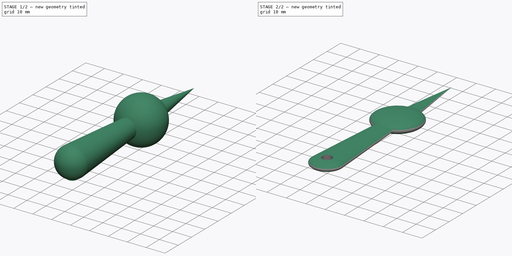
[diagram: build sequence overview — one tinted view per stage of 2, left to right]
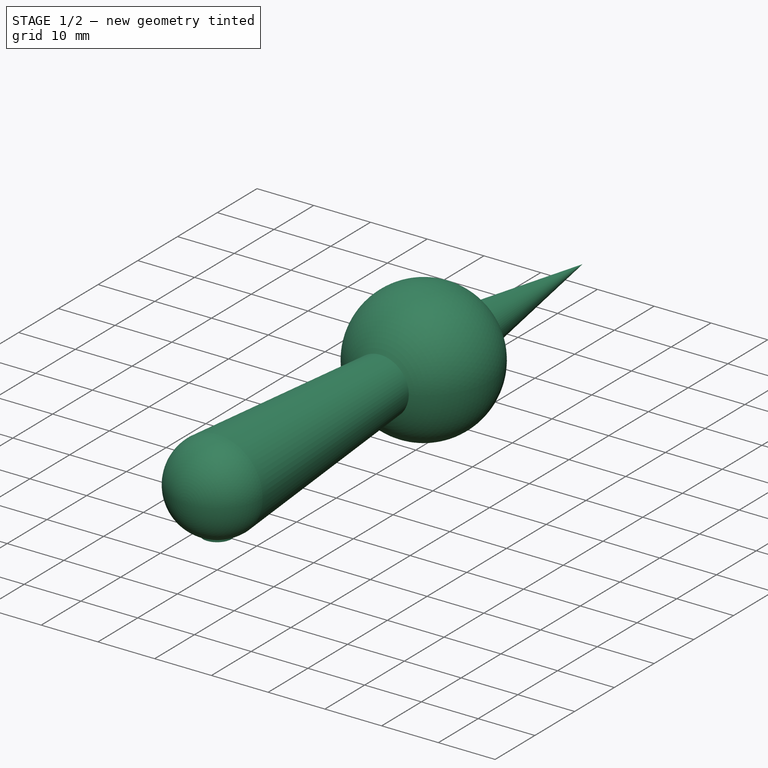
[diagram: stage 1 of 2 — iso view after this stage's code; geometry added in this stage tinted green]
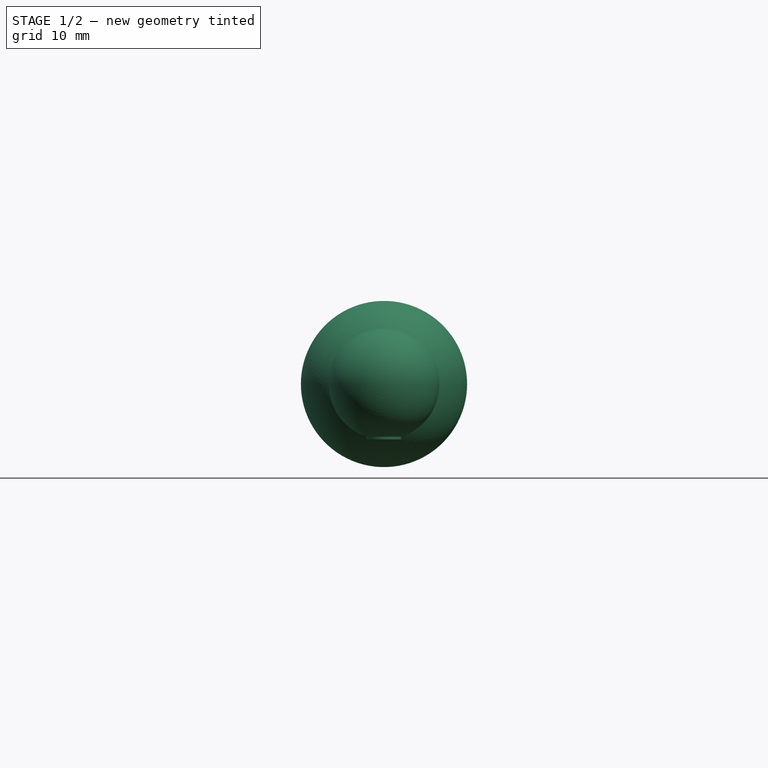
[diagram: stage 1 of 2 — front view after this stage's code; geometry added in this stage tinted green]
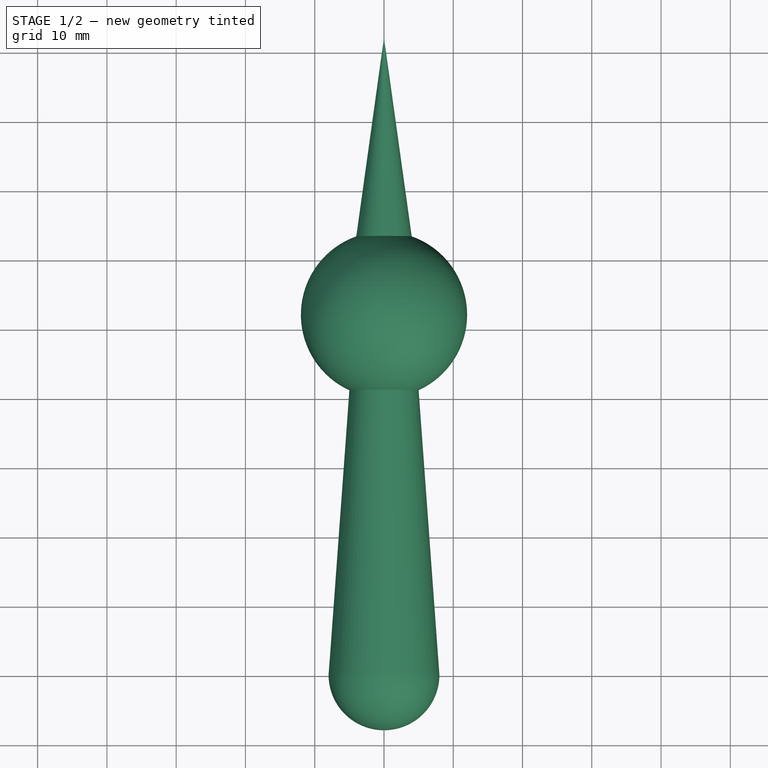
[diagram: stage 1 of 2 — top view after this stage's code; geometry added in this stage tinted green]
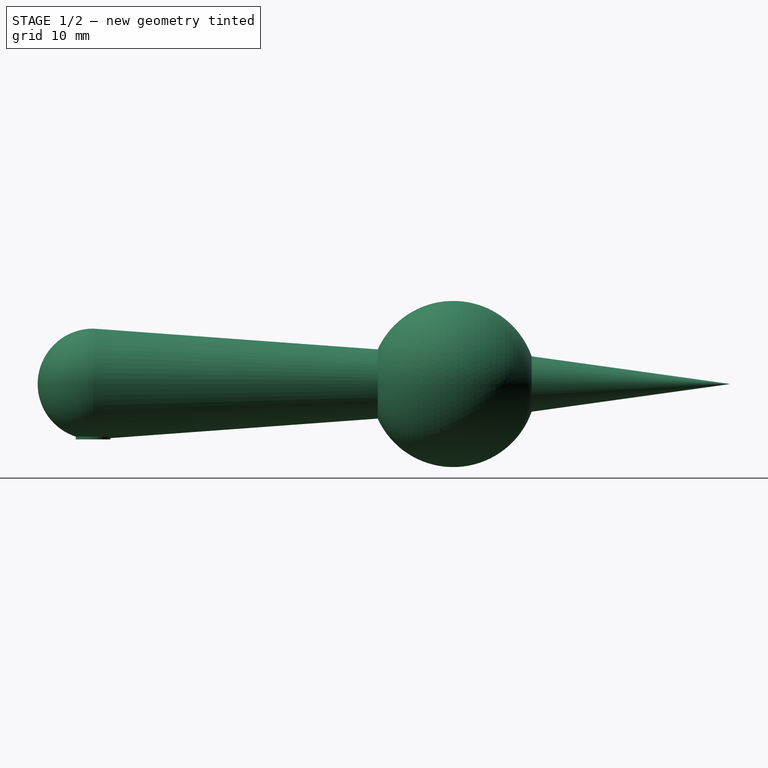
[diagram: stage 1 of 2 — right view after this stage's code; geometry added in this stage tinted green]
FCSTD DOCUMENT  (FreeCAD 0.20R29410 (Git))
Label: zeiger
License: All rights reserved
LicenseURL: http://en.wikipedia.org/wiki/All_rights_reserved
objects: Sketcher::SketchObject×1, Part::Revolution×1, Part::FeaturePython×1, Part::Cylinder×1, Part::Cut×1
note: 5 computed .brp shape members not serialized (recipe doc carries the construction recipe); baked Part::Feature solids carry a one-line shape summary decoded from their .brp

FEATURE [Sketcher::SketchObject] Sketch
  FullyConstrained = true
  sketch-geometry (5):
    g0: LineSegment StartX=0 StartY=92 StartZ=0 EndX=-1.5e-15 EndY=-8 EndZ=0
    g1: LineSegment StartX=8 StartY=-2e-15 StartZ=0 EndX=5 EndY=41.0913 EndZ=0
    g2: LineSegment StartX=0 StartY=92 StartZ=0 EndX=4 EndY=63.3137 EndZ=0
    g3: ArcOfCircle CenterX=0 CenterY=52 CenterZ=0 NormalX=0 NormalY=0 NormalZ=1 AngleXU=0 Radius=12 StartAngle=5.14216 EndAngle=7.51414
    g4: ArcOfCircle CenterX=0 CenterY=0 CenterZ=0 NormalX=0 NormalY=0 NormalZ=1 AngleXU=0 Radius=8 StartAngle=4.71239 EndAngle=6.28319
  constraints (16):
    c: PointOnObject(g0,g-2)
    c: PointOnObject(g0,g-2)
    c: Coincident(g0,g2)
    c: PointOnObject(g3,g0)
    c: Coincident(g3,g2)
    c: Coincident(g3,g1)
    c: DistanceY(g0,g0) = 100
    c: DistanceY(g0,g3) = 60
    c: DistanceX(g0,g1) = 8
    c: DistanceX(g3,g1) = 5
    c: DistanceX(g3,g2) = 4
    c: Radius(g3) = 12
    c: Horizontal(g1,g-1)
    c: Coincident(g4,g-1)
    c: Coincident(g4,g1)
    c: Coincident(g4,g0)
FEATURE [Part::Revolution] Revolve
  Angle = 360
  Axis = (0,1,0)
  Base = (0,0,0)
  FaceMakerClass = Part::FaceMakerBullseye
  Solid = true
  Source = -> Sketch
  Symmetric = false
FEATURE [Part::Cylinder] Cylinder
  Angle = 360
  AttacherType = Attacher::AttachEngine3D
  FirstAngle = 0
  Height = 15
  Placement = pos=(0,0,-8) rot=(0,0,1;0rad)
  Radius = 2.5
  SecondAngle = 0
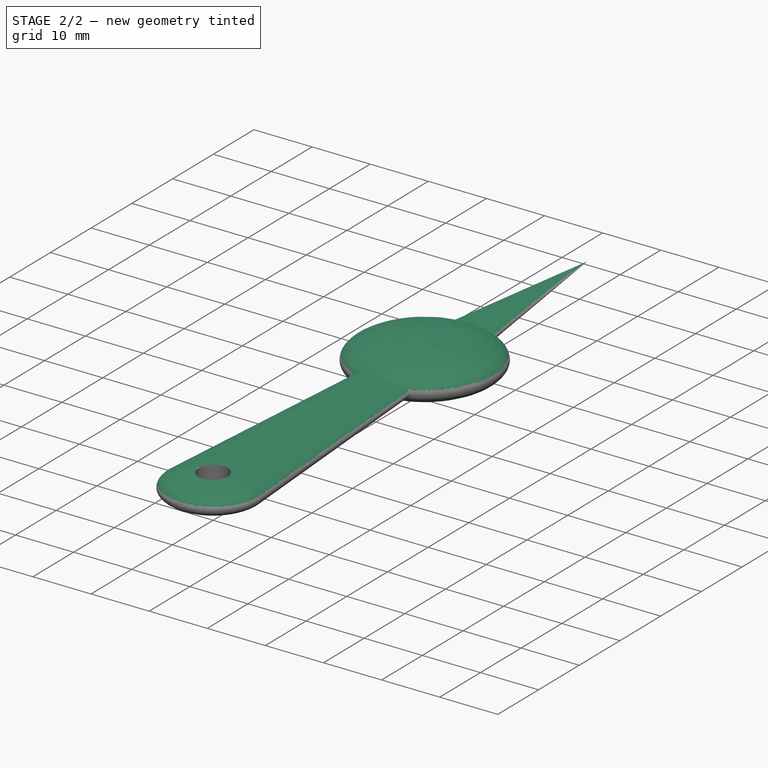
[diagram: stage 2 of 2 — iso view after this stage's code; geometry added in this stage tinted green]
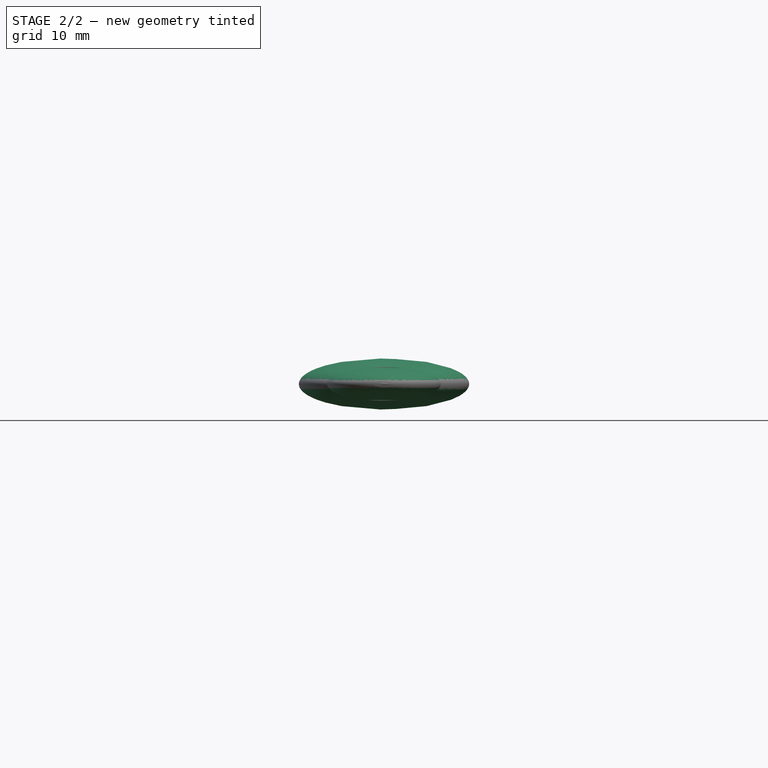
[diagram: stage 2 of 2 — front view after this stage's code; geometry added in this stage tinted green]
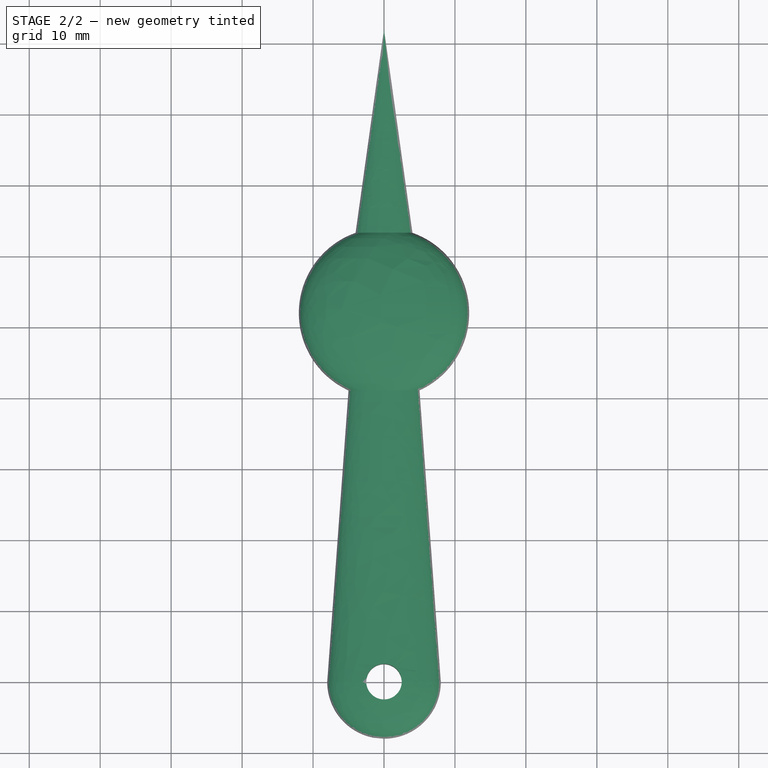
[diagram: stage 2 of 2 — top view after this stage's code; geometry added in this stage tinted green]
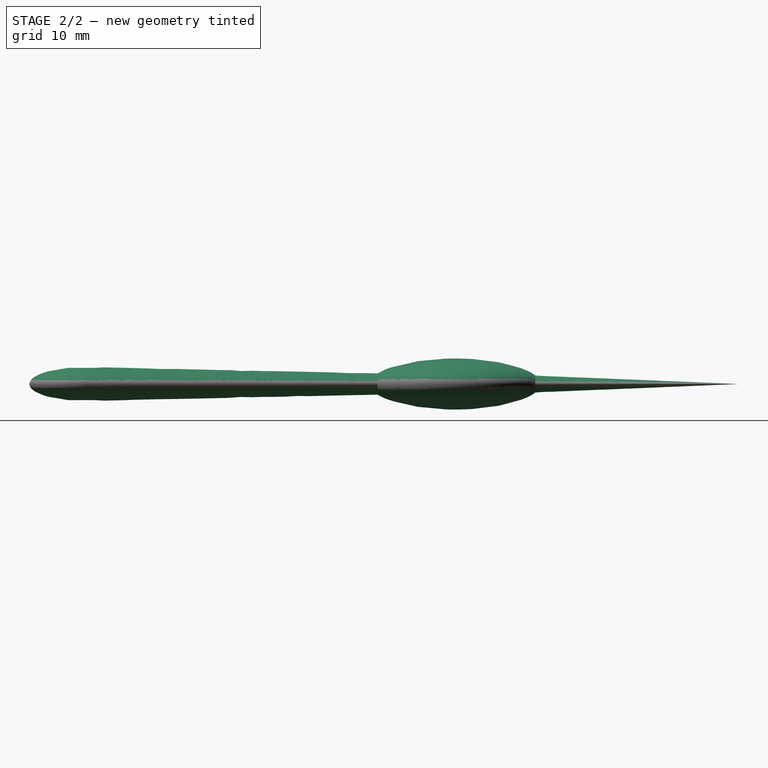
[diagram: stage 2 of 2 — right view after this stage's code; geometry added in this stage tinted green]
FEATURE [Part::FeaturePython] Clone  label="Revolve001"  # Draft clone (typed FeaturePython)
  AttacherType = Attacher::AttachEngine3D
  Fuse = false
  Objects = -> [Revolve]
  Scale = (1,1,0.3)
FEATURE [Part::Cut] Cut
  Base = -> Clone
  Tool = -> Cylinder
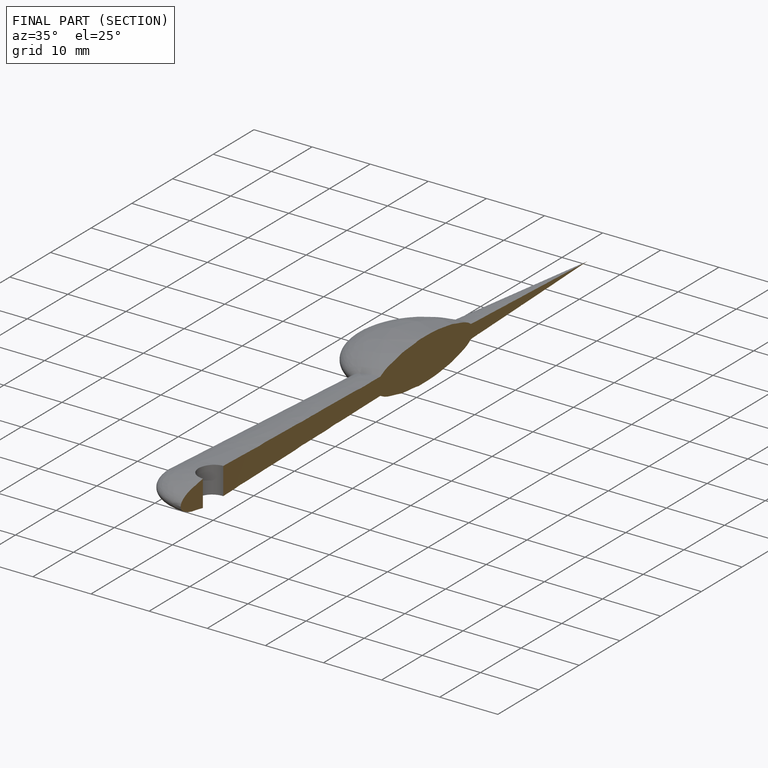
[diagram: finished part — half-section view (interior)]
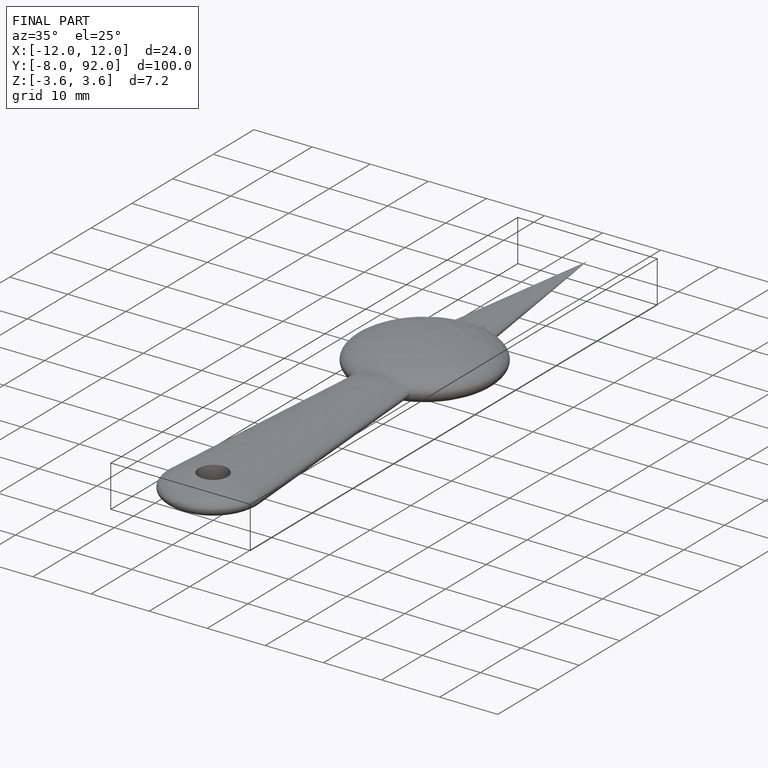
[diagram: finished part — iso view with bounding-box wireframe]
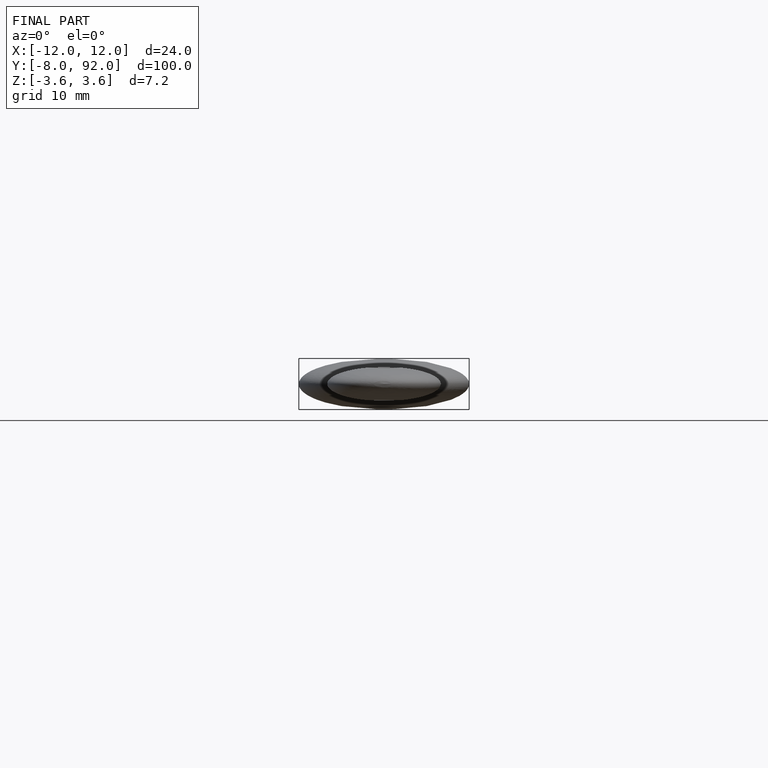
[diagram: finished part — front view with bounding-box wireframe]
